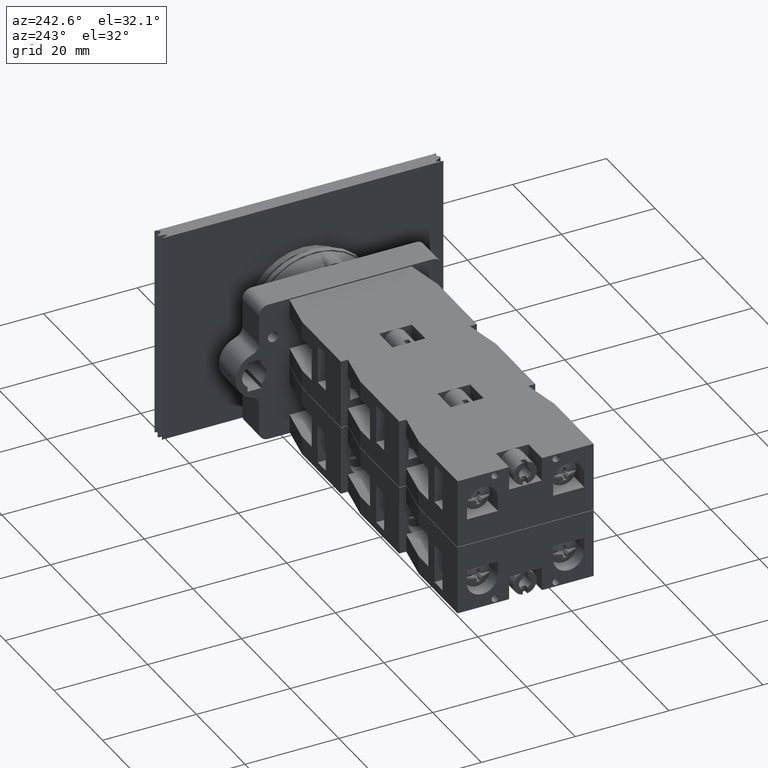
[diagram: clean part render]
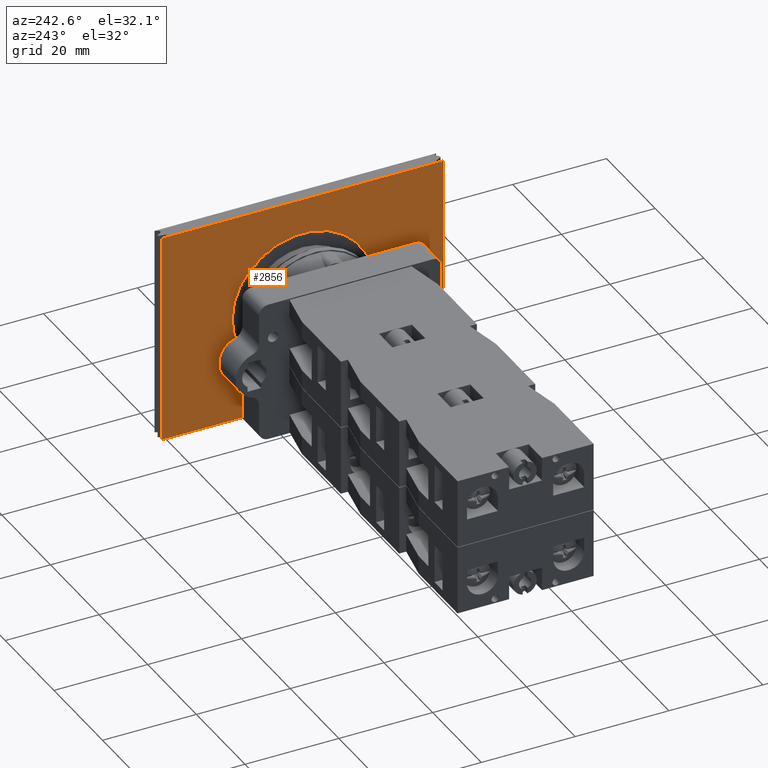
[diagram: same view with one face highlighted and labeled with its STEP entity id]
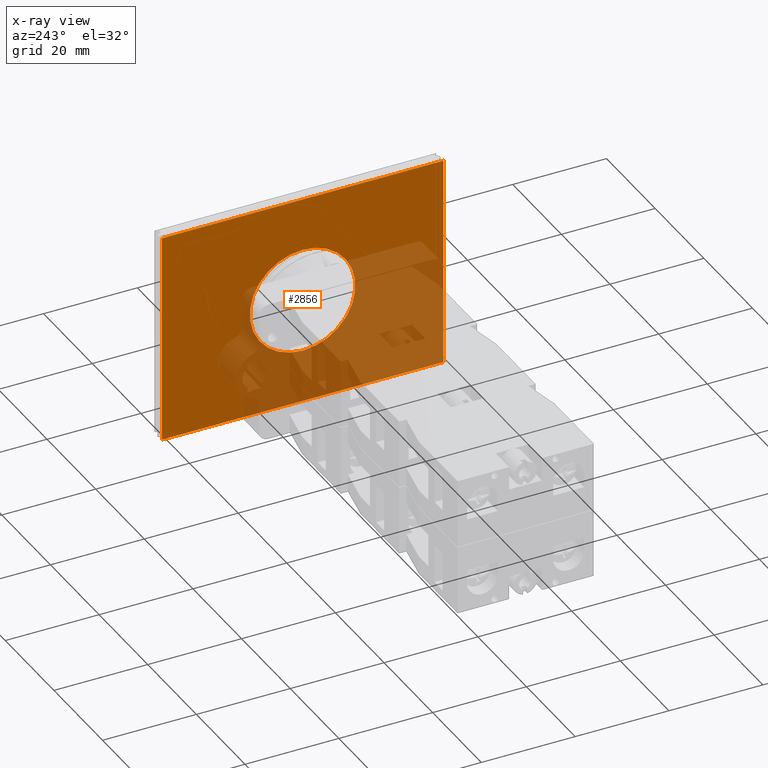
[diagram: x-ray of the same camera — body ghosted, the highlighted face saturated]
A machine part, auxiliary view. The second image highlights one B-rep face of the part: STEP entity #2856.
The next image is the same camera in x-ray: the body ghosted, the highlighted face saturated — about 40% of this face is hidden behind the body in this view.
In plain terms, the highlighted planar face has unit normal (-1, -0, -0).
Its self-contained STEP definition (entity closure, byte-faithful):
#2761=CARTESIAN_POINT('',(-12.704183619849175,-32.725398273954283,11.250000000000000));
#2762=VERTEX_POINT('',#2761);
#2763=CARTESIAN_POINT('',(-12.704183619849179,-32.725398273954283,22.500000000000000));
#2764=DIRECTION('',(-1.0,0.0,0.0));
#2765=DIRECTION('',(0.0,0.0,1.0));
#2766=AXIS2_PLACEMENT_3D('',#2763,#2764,#2765);
#2767=CIRCLE('',#2766,11.250000000000000);
#2768=EDGE_CURVE('',#2762,#2762,#2767,.T.);
#2786=CARTESIAN_POINT('',(-12.704183619849179,-2.725398273954287,45.0));
#2787=VERTEX_POINT('',#2786);
#2796=CARTESIAN_POINT('',(-12.704183619849179,-2.725398273954287,0.0));
#2797=VERTEX_POINT('',#2796);
#2798=CARTESIAN_POINT('',(-12.704183619849179,-2.725398273954287,0.0));
#2799=DIRECTION('',(0.0,0.0,1.0));
#2800=VECTOR('',#2799,45.0);
#2801=LINE('',#2798,#2800);
#2802=EDGE_CURVE('',#2797,#2787,#2801,.T.);
#2823=CARTESIAN_POINT('',(-12.704183619849179,-2.725398273954287,0.0));
#2824=DIRECTION('',(1.0,0.0,0.0));
#2825=DIRECTION('',(0.0,0.0,-1.0));
#2826=AXIS2_PLACEMENT_3D('',#2823,#2824,#2825);
#2827=PLANE('',#2826);
#2828=CARTESIAN_POINT('',(-12.704183619849172,-62.725398273954283,45.0));
#2829=VERTEX_POINT('',#2828);
#2830=CARTESIAN_POINT('',(-12.704183619849179,-2.725398273954287,45.0));
#2831=DIRECTION('',(0.0,-1.0,0.0));
#2832=VECTOR('',#2831,60.0);
#2833=LINE('',#2830,#2832);
#2834=EDGE_CURVE('',#2787,#2829,#2833,.T.);
#2835=ORIENTED_EDGE('',*,*,#2834,.T.);
#2836=CARTESIAN_POINT('',(-12.704183619849172,-62.725398273954283,0.0));
#2837=VERTEX_POINT('',#2836);
#2838=CARTESIAN_POINT('',(-12.704183619849172,-62.725398273954283,0.0));
#2839=DIRECTION('',(0.0,0.0,1.0));
#2840=VECTOR('',#2839,45.0);
#2841=LINE('',#2838,#2840);
#2842=EDGE_CURVE('',#2837,#2829,#2841,.T.);
#2843=ORIENTED_EDGE('',*,*,#2842,.F.);
#2844=CARTESIAN_POINT('',(-12.704183619849172,-62.725398273954283,0.0));
#2845=DIRECTION('',(0.0,1.0,0.0));
#2846=VECTOR('',#2845,60.0);
#2847=LINE('',#2844,#2846);
#2848=EDGE_CURVE('',#2837,#2797,#2847,.T.);
#2849=ORIENTED_EDGE('',*,*,#2848,.T.);
#2850=ORIENTED_EDGE('',*,*,#2802,.T.);
#2851=EDGE_LOOP('',(#2835,#2843,#2849,#2850));
#2852=FACE_OUTER_BOUND('',#2851,.T.);
#2853=ORIENTED_EDGE('',*,*,#2768,.T.);
#2854=EDGE_LOOP('',(#2853));
#2855=FACE_BOUND('',#2854,.T.);
#2856=ADVANCED_FACE('',(#2852,#2855),#2827,.T.);